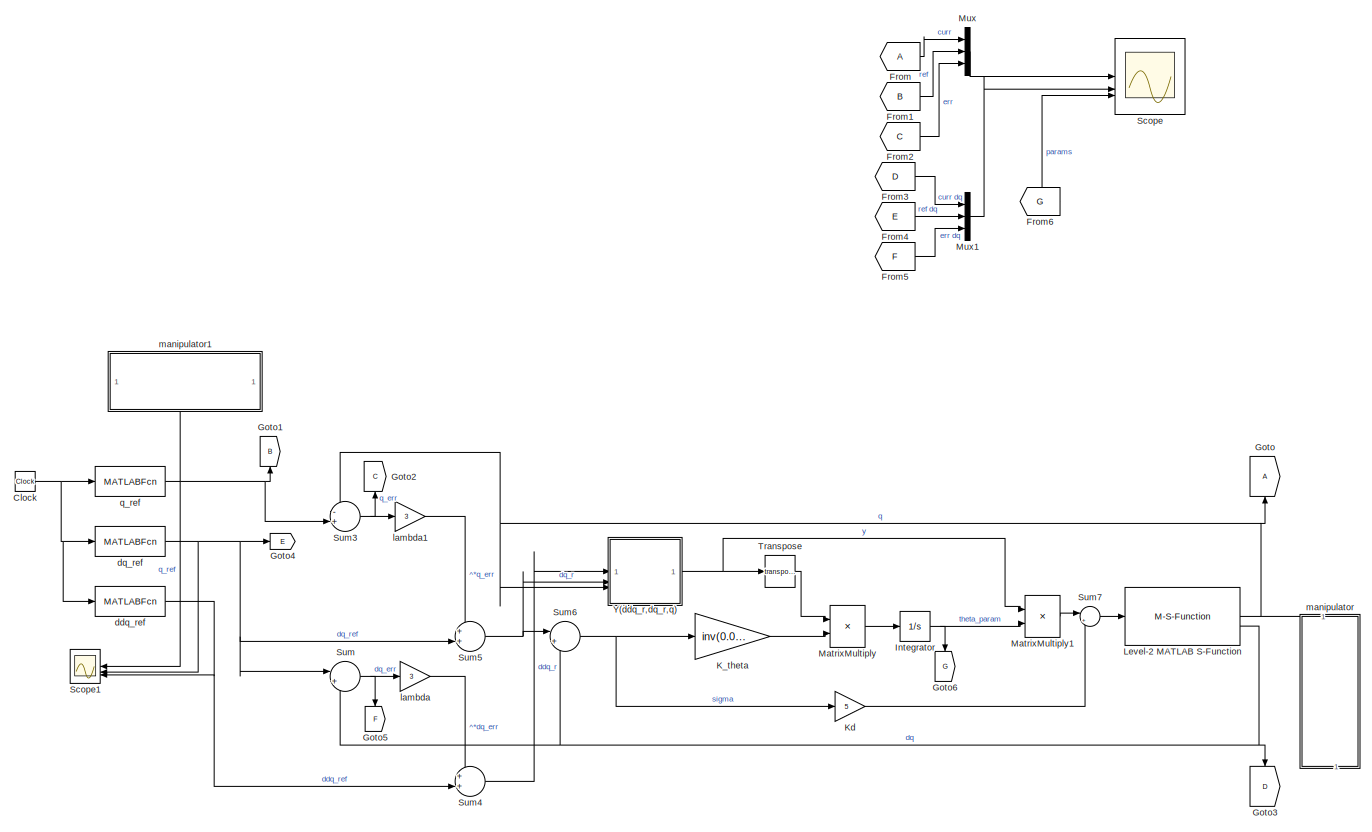
[diagram: root canvas - part 1/1, most of the canvas]
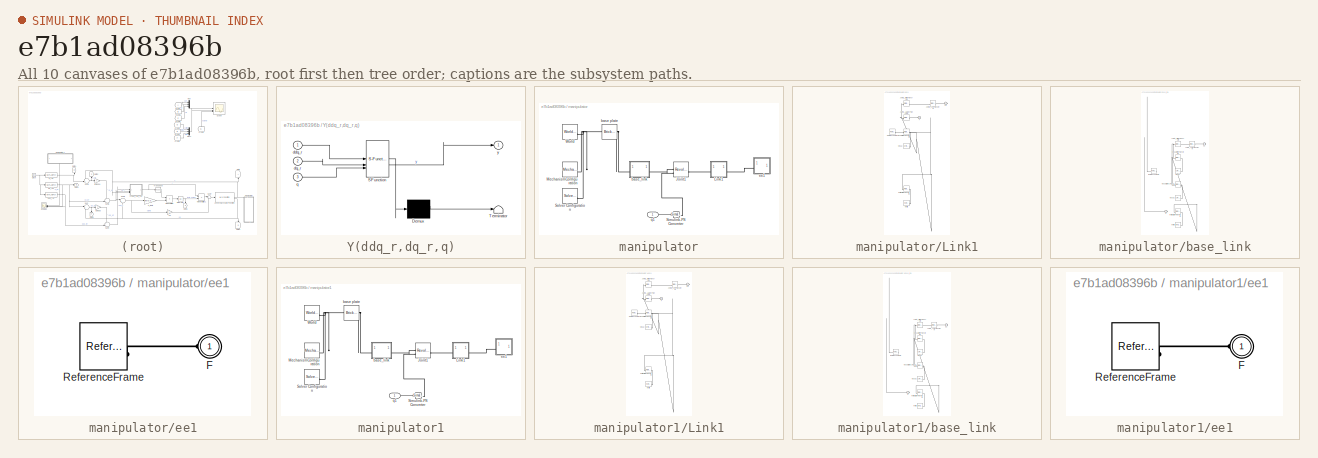
[diagram: thumbnail index - all 10 canvases of the model, root first then tree order]
MODEL slx_e7b1ad08396b
KIND model
CONFIG AbsTol = auto
CONFIG EnableMultiTasking = off
CONFIG FixedStep = 0.001
CONFIG MaxStep = 0.01
CONFIG MinStep = auto
CONFIG RelTol = 0.01
CONFIG SampleTimeConstraint = Unconstrained
CONFIG SolverName = VariableStepAuto
CONFIG StartTime = 0.0
CONFIG StopTime = 15
WORKSPACE source: mxarray member
WORKSPACE Var = 0
BLOCK [Clock] Clock
BLOCK [From] From
BLOCK [From] From1
  GotoTag = B
BLOCK [From] From2
  GotoTag = C
BLOCK [From] From3
  GotoTag = D
BLOCK [From] From4
  GotoTag = E
BLOCK [From] From5
  GotoTag = F
BLOCK [From] From6
  GotoTag = G
BLOCK [Goto] Goto
  NameLocation = right
BLOCK [Goto] Goto1
  GotoTag = B
  NameLocation = right
BLOCK [Goto] Goto2
  GotoTag = C
  NameLocation = right
BLOCK [Goto] Goto3
  GotoTag = D
  NameLocation = left
BLOCK [Goto] Goto4
  GotoTag = E
BLOCK [Goto] Goto5
  GotoTag = F
  NameLocation = left
BLOCK [Goto] Goto6
  GotoTag = G
  NameLocation = left
BLOCK [Integrator] Integrator
  InitialCondition = [1,1,-9.81]
BLOCK [Gain] K_theta
  Gain = inv(0.001)
  Multiplication = Matrix(K*u)
BLOCK [Gain] Kd
  Gain = 5
BLOCK [M-S-Function] Level-2 MATLAB S-Function
  FunctionName = adaptive_control_s_function
  Parameters = arg1,arg2
BLOCK [Product] MatrixMultiply
  Multiplication = Matrix(*)
BLOCK [Product] MatrixMultiply1
  Multiplication = Matrix(*)
BLOCK [Mux] Mux
  DisplayOption = bar
  Inputs = 3
BLOCK [Mux] Mux1
  DisplayOption = bar
  Inputs = 3
BLOCK [Scope] Scope
  Floating = off
  NumInputPorts = 3
  ScopeSpecificationString = Simulink.scopes.TimeScopeBlockCfg('CurrentConfiguration', extmgr.ConfigurationSet(extmgr.Configuration('Core','General UI',true),extmgr.Configuration('Core','Source UI',true),extmgr.Configuration('Sources','WiredSimulink',true),extmgr.Configuration('Visuals','Time Domain',true,'SerializedDisplays',{struct('MinYLimReal','-0.64027','MaxYLimReal','0.52645','YLabelReal','','MinYLimMag','0.00000','MaxY...<+2980ch>
BLOCK [Scope] Scope1
  Floating = off
  NameLocation = top
  NumInputPorts = 3
  ScopeSpecificationString = Simulink.scopes.TimeScopeBlockCfg('CurrentConfiguration', extmgr.ConfigurationSet(extmgr.Configuration('Core','General UI',true),extmgr.Configuration('Core','Source UI',true),extmgr.Configuration('Sources','WiredSimulink',true,'DataLoggingVariableName','ScopeData1'),extmgr.Configuration('Visuals','Time Domain',true,'SerializedDisplays',{struct('MinYLimReal','-2.61799','MaxYLimReal','2.61799','YLab...<+1493ch>
BLOCK [Sum] Sum
  Inputs = |+-
  NameLocation = left
BLOCK [Sum] Sum3
  Inputs = -+|
BLOCK [Sum] Sum4
  Inputs = ++|
BLOCK [Sum] Sum5
  Inputs = ++|
BLOCK [Sum] Sum6
  Inputs = |+-
BLOCK [Sum] Sum7
  Inputs = |++
BLOCK [Math] Transpose
  Operator = transpose
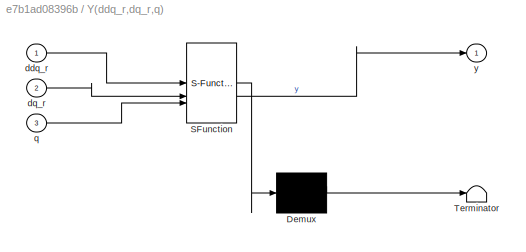
BLOCK [SubSystem] Y(ddq_r,dq_r,q)
  ErrorFcn = Stateflow.Translate.translate
  PermitHierarchicalResolution = ExplicitOnly
  SFBlockType = MATLAB Function
  TreatAsAtomicUnit = on
BLOCK [Demux] Y(ddq_r,dq_r,q)/ Demux 
  Outputs = 1
BLOCK [S-Function] Y(ddq_r,dq_r,q)/ SFunction 
  EnableBusSupport = on
  FunctionName = sf_sfun
  PortCounts = [3 2]
  SFcnIsStateOwnerBlock = off
  SFunctionDeploymentMode = off
  Tag = Stateflow S-Function 1
BLOCK [Terminator] Y(ddq_r,dq_r,q)/ Terminator 
BLOCK [Inport] Y(ddq_r,dq_r,q)/ddq_r
BLOCK [Inport] Y(ddq_r,dq_r,q)/dq_r
  Port = 2
BLOCK [Inport] Y(ddq_r,dq_r,q)/q
  Port = 3
BLOCK [Outport] Y(ddq_r,dq_r,q)/y
BLOCK [MATLABFcn] ddq_ref
  MATLABFcn = ddq_ref(u)
BLOCK [MATLABFcn] dq_ref
  MATLABFcn = dq_ref(u)
BLOCK [Gain] lambda
  Gain = 3
BLOCK [Gain] lambda1
  Gain = 3
BLOCK [SubSystem] manipulator
BLOCK [Reference] manipulator/Joint1  REF=sm_lib/Joints/Revolute Joint
  SourceBlock = sm_lib/Joints/Revolute Joint
  SourceType = Revolute Joint
BLOCK [SubSystem] manipulator/Link1
BLOCK [PMIOPort] manipulator/Link1/F
  Side = Left
BLOCK [PMIOPort] manipulator/Link1/F1
  Port = 2
  Side = Right
BLOCK [Reference] manipulator/Link1/Inertia  REF=sm_lib/Body Elements/Inertia
  SourceBlock = sm_lib/Body Elements/Inertia
  SourceType = Inertia
BLOCK [Reference] manipulator/Link1/InertiaOriginTransform  REF=sm_lib/Frames and
Transforms/Rigid
Transform
  SourceBlock = sm_lib/Frames and\nTransforms/Rigid\nTransform
  SourceType = Rigid\nTransform
BLOCK [Reference] manipulator/Link1/Joint1_AxisInvTransform  REF=sm_lib/Frames and
Transforms/Rigid
Transform
  SourceBlock = sm_lib/Frames and\nTransforms/Rigid\nTransform
  SourceType = Rigid\nTransform
BLOCK [Reference] manipulator/Link1/Joint2_AxisTransform  REF=sm_lib/Frames and
Transforms/Rigid
Transform
  SourceBlock = sm_lib/Frames and\nTransforms/Rigid\nTransform
  SourceType = Rigid\nTransform
BLOCK [Reference] manipulator/Link1/Joint2_OriginTransform  REF=sm_lib/Frames and
Transforms/Rigid
Transform
  SourceBlock = sm_lib/Frames and\nTransforms/Rigid\nTransform
  SourceType = Rigid\nTransform
BLOCK [Reference] manipulator/Link1/ReferenceFrame  REF=sm_lib/Frames and
Transforms/Reference
Frame
  SourceBlock = sm_lib/Frames and\nTransforms/Reference\nFrame
  SourceType = Reference\nFrame
BLOCK [Reference] manipulator/Link1/Visual  REF=sm_lib/Body Elements/Cylindrical Solid
  SourceBlock = sm_lib/Body Elements/Cylindrical Solid
  SourceType = Cylindrical Solid
BLOCK [Reference] manipulator/Link1/VisualOriginTransform  REF=sm_lib/Frames and
Transforms/Rigid
Transform
  SourceBlock = sm_lib/Frames and\nTransforms/Rigid\nTransform
  SourceType = Rigid\nTransform
BLOCK [Reference] manipulator/MechanismConfiguration  REF=sm_lib/Utilities/Mechanism
Configuration
  SourceBlock = sm_lib/Utilities/Mechanism\nConfiguration
  SourceType = Mechanism\nConfiguration
BLOCK [Reference] manipulator/Simulink-PS Converter  REF=nesl_utility/Simulink-PS
Converter
  SourceBlock = nesl_utility/Simulink-PS\nConverter
  SourceType = Simulink-PS\nConverter
BLOCK [Reference] manipulator/Solver Configuration  REF=nesl_utility/Solver
Configuration
  SourceBlock = nesl_utility/Solver\nConfiguration
  SourceType = Solver\nConfiguration
BLOCK [Reference] manipulator/World  REF=sm_lib/Frames and
Transforms/World Frame
  SourceBlock = sm_lib/Frames and\nTransforms/World Frame
  SourceType = World Frame
BLOCK [Reference] manipulator/base plate  REF=sm_lib/Body Elements/Brick Solid
  SourceBlock = sm_lib/Body Elements/Brick Solid
  SourceType = Brick Solid
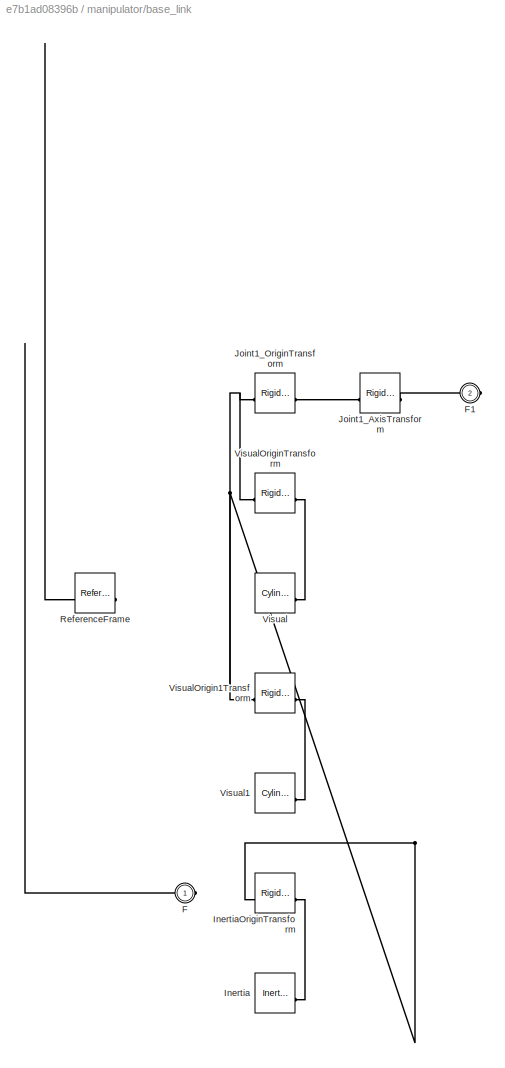
BLOCK [SubSystem] manipulator/base_link
BLOCK [PMIOPort] manipulator/base_link/F
  Side = Left
BLOCK [PMIOPort] manipulator/base_link/F1
  Port = 2
  Side = Right
BLOCK [Reference] manipulator/base_link/Inertia  REF=sm_lib/Body Elements/Inertia
  SourceBlock = sm_lib/Body Elements/Inertia
  SourceType = Inertia
BLOCK [Reference] manipulator/base_link/InertiaOriginTransform  REF=sm_lib/Frames and
Transforms/Rigid
Transform
  SourceBlock = sm_lib/Frames and\nTransforms/Rigid\nTransform
  SourceType = Rigid\nTransform
BLOCK [Reference] manipulator/base_link/Joint1_AxisTransform  REF=sm_lib/Frames and
Transforms/Rigid
Transform
  SourceBlock = sm_lib/Frames and\nTransforms/Rigid\nTransform
  SourceType = Rigid\nTransform
BLOCK [Reference] manipulator/base_link/Joint1_OriginTransform  REF=sm_lib/Frames and
Transforms/Rigid
Transform
  SourceBlock = sm_lib/Frames and\nTransforms/Rigid\nTransform
  SourceType = Rigid\nTransform
BLOCK [Reference] manipulator/base_link/ReferenceFrame  REF=sm_lib/Frames and
Transforms/Reference
Frame
  SourceBlock = sm_lib/Frames and\nTransforms/Reference\nFrame
  SourceType = Reference\nFrame
BLOCK [Reference] manipulator/base_link/Visual  REF=sm_lib/Body Elements/Cylindrical Solid
  SourceBlock = sm_lib/Body Elements/Cylindrical Solid
  SourceType = Cylindrical Solid
BLOCK [Reference] manipulator/base_link/Visual1  REF=sm_lib/Body Elements/Cylindrical Solid
  SourceBlock = sm_lib/Body Elements/Cylindrical Solid
  SourceType = Cylindrical Solid
BLOCK [Reference] manipulator/base_link/VisualOrigin1Transform  REF=sm_lib/Frames and
Transforms/Rigid
Transform
  SourceBlock = sm_lib/Frames and\nTransforms/Rigid\nTransform
  SourceType = Rigid\nTransform
BLOCK [Reference] manipulator/base_link/VisualOriginTransform  REF=sm_lib/Frames and
Transforms/Rigid
Transform
  SourceBlock = sm_lib/Frames and\nTransforms/Rigid\nTransform
  SourceType = Rigid\nTransform
BLOCK [SubSystem] manipulator/ee1
BLOCK [PMIOPort] manipulator/ee1/F
  Side = Left
BLOCK [Reference] manipulator/ee1/ReferenceFrame  REF=sm_lib/Frames and
Transforms/Reference
Frame
  SourceBlock = sm_lib/Frames and\nTransforms/Reference\nFrame
  SourceType = Reference\nFrame
BLOCK [Inport] manipulator/q1
BLOCK [SubSystem] manipulator1
  NameLocation = top
  PortSchema = {"entries":[{"content":{"sides":[{"content":{},"type":"ConnectorPlacement.EquallySpacedRectSide","uuid":"5723c637-0523-4204-8fce-97b9f380e48b"},{"content":{"side":"RIGHT"},"type":"ConnectorPlacement.EquallySpacedRectSide","uuid":"3a448cf4-98b4-43ec-a2cf-4edeb1b51242"},{"content":{"side":"TOP"},"type":"ConnectorPlacement.EquallySpacedRectSide","uuid":"b2222458-9218-4d12-87f2-c6e8532121c4"},{"conten...<+325ch>
BLOCK [Reference] manipulator1/Joint1  REF=sm_lib/Joints/Revolute Joint
  SourceBlock = sm_lib/Joints/Revolute Joint
  SourceType = Revolute Joint
BLOCK [SubSystem] manipulator1/Link1
BLOCK [PMIOPort] manipulator1/Link1/F
  Side = Left
BLOCK [PMIOPort] manipulator1/Link1/F1
  Port = 2
  Side = Right
BLOCK [Reference] manipulator1/Link1/Inertia  REF=sm_lib/Body Elements/Inertia
  SourceBlock = sm_lib/Body Elements/Inertia
  SourceType = Inertia
BLOCK [Reference] manipulator1/Link1/InertiaOriginTransform  REF=sm_lib/Frames and
Transforms/Rigid
Transform
  SourceBlock = sm_lib/Frames and\nTransforms/Rigid\nTransform
  SourceType = Rigid\nTransform
BLOCK [Reference] manipulator1/Link1/Joint1_AxisInvTransform  REF=sm_lib/Frames and
Transforms/Rigid
Transform
  SourceBlock = sm_lib/Frames and\nTransforms/Rigid\nTransform
  SourceType = Rigid\nTransform
BLOCK [Reference] manipulator1/Link1/Joint2_AxisTransform  REF=sm_lib/Frames and
Transforms/Rigid
Transform
  SourceBlock = sm_lib/Frames and\nTransforms/Rigid\nTransform
  SourceType = Rigid\nTransform
BLOCK [Reference] manipulator1/Link1/Joint2_OriginTransform  REF=sm_lib/Frames and
Transforms/Rigid
Transform
  SourceBlock = sm_lib/Frames and\nTransforms/Rigid\nTransform
  SourceType = Rigid\nTransform
BLOCK [Reference] manipulator1/Link1/ReferenceFrame  REF=sm_lib/Frames and
Transforms/Reference
Frame
  SourceBlock = sm_lib/Frames and\nTransforms/Reference\nFrame
  SourceType = Reference\nFrame
BLOCK [Reference] manipulator1/Link1/Visual  REF=sm_lib/Body Elements/Cylindrical Solid
  SourceBlock = sm_lib/Body Elements/Cylindrical Solid
  SourceType = Cylindrical Solid
BLOCK [Reference] manipulator1/Link1/VisualOriginTransform  REF=sm_lib/Frames and
Transforms/Rigid
Transform
  SourceBlock = sm_lib/Frames and\nTransforms/Rigid\nTransform
  SourceType = Rigid\nTransform
BLOCK [Reference] manipulator1/MechanismConfiguration  REF=sm_lib/Utilities/Mechanism
Configuration
  SourceBlock = sm_lib/Utilities/Mechanism\nConfiguration
  SourceType = Mechanism\nConfiguration
BLOCK [Reference] manipulator1/Simulink-PS Converter  REF=nesl_utility/Simulink-PS
Converter
  SourceBlock = nesl_utility/Simulink-PS\nConverter
  SourceType = Simulink-PS\nConverter
BLOCK [Reference] manipulator1/Solver Configuration  REF=nesl_utility/Solver
Configuration
  SourceBlock = nesl_utility/Solver\nConfiguration
  SourceType = Solver\nConfiguration
BLOCK [Reference] manipulator1/World  REF=sm_lib/Frames and
Transforms/World Frame
  SourceBlock = sm_lib/Frames and\nTransforms/World Frame
  SourceType = World Frame
BLOCK [Reference] manipulator1/base plate  REF=sm_lib/Body Elements/Brick Solid
  SourceBlock = sm_lib/Body Elements/Brick Solid
  SourceType = Brick Solid
BLOCK [SubSystem] manipulator1/base_link
BLOCK [PMIOPort] manipulator1/base_link/F
  Side = Left
BLOCK [PMIOPort] manipulator1/base_link/F1
  Port = 2
  Side = Right
BLOCK [Reference] manipulator1/base_link/Inertia  REF=sm_lib/Body Elements/Inertia
  SourceBlock = sm_lib/Body Elements/Inertia
  SourceType = Inertia
BLOCK [Reference] manipulator1/base_link/InertiaOriginTransform  REF=sm_lib/Frames and
Transforms/Rigid
Transform
  SourceBlock = sm_lib/Frames and\nTransforms/Rigid\nTransform
  SourceType = Rigid\nTransform
BLOCK [Reference] manipulator1/base_link/Joint1_AxisTransform  REF=sm_lib/Frames and
Transforms/Rigid
Transform
  SourceBlock = sm_lib/Frames and\nTransforms/Rigid\nTransform
  SourceType = Rigid\nTransform
BLOCK [Reference] manipulator1/base_link/Joint1_OriginTransform  REF=sm_lib/Frames and
Transforms/Rigid
Transform
  SourceBlock = sm_lib/Frames and\nTransforms/Rigid\nTransform
  SourceType = Rigid\nTransform
BLOCK [Reference] manipulator1/base_link/ReferenceFrame  REF=sm_lib/Frames and
Transforms/Reference
Frame
  SourceBlock = sm_lib/Frames and\nTransforms/Reference\nFrame
  SourceType = Reference\nFrame
BLOCK [Reference] manipulator1/base_link/Visual  REF=sm_lib/Body Elements/Cylindrical Solid
  SourceBlock = sm_lib/Body Elements/Cylindrical Solid
  SourceType = Cylindrical Solid
BLOCK [Reference] manipulator1/base_link/Visual1  REF=sm_lib/Body Elements/Cylindrical Solid
  SourceBlock = sm_lib/Body Elements/Cylindrical Solid
  SourceType = Cylindrical Solid
BLOCK [Reference] manipulator1/base_link/VisualOrigin1Transform  REF=sm_lib/Frames and
Transforms/Rigid
Transform
  SourceBlock = sm_lib/Frames and\nTransforms/Rigid\nTransform
  SourceType = Rigid\nTransform
BLOCK [Reference] manipulator1/base_link/VisualOriginTransform  REF=sm_lib/Frames and
Transforms/Rigid
Transform
  SourceBlock = sm_lib/Frames and\nTransforms/Rigid\nTransform
  SourceType = Rigid\nTransform
BLOCK [SubSystem] manipulator1/ee1
BLOCK [PMIOPort] manipulator1/ee1/F
  Side = Left
BLOCK [Reference] manipulator1/ee1/ReferenceFrame  REF=sm_lib/Frames and
Transforms/Reference
Frame
  SourceBlock = sm_lib/Frames and\nTransforms/Reference\nFrame
  SourceType = Reference\nFrame
BLOCK [Inport] manipulator1/q1
BLOCK [MATLABFcn] q_ref
  MATLABFcn = q_ref(u)
NET Clock:1 -> ddq_ref:1, dq_ref:1, q_ref:1
LINE From1:1 -> Mux:2
LINE From2:1 -> Mux:3
LINE From3:1 -> Mux1:1
LINE From4:1 -> Mux1:2
LINE From5:1 -> Mux1:3
LINE From6:1 -> Scope:3
LINE From:1 -> Mux:1
NET Integrator:1 -> Goto6:1, MatrixMultiply1:2
LINE K_theta:1 -> MatrixMultiply:2
LINE Kd:1 -> Sum7:2
NET Level-2 MATLAB S-Function:1 -> Goto:1, Sum3:1, Y(ddq_r,dq_r,q):3, manipulator:1
NET Level-2 MATLAB S-Function:2 -> Goto3:1, Sum6:2, Sum:2
LINE MatrixMultiply1:1 -> Sum7:1
LINE MatrixMultiply:1 -> Integrator:1
LINE Mux1:1 -> Scope:2
LINE Mux:1 -> Scope:1
NET Sum3:1 -> Goto2:1, lambda1:1
LINE Sum4:1 -> Y(ddq_r,dq_r,q):1
NET Sum5:1 -> Sum6:1, Y(ddq_r,dq_r,q):2
NET Sum6:1 -> K_theta:1, Kd:1
LINE Sum7:1 -> Level-2 MATLAB S-Function:1
NET Sum:1 -> Goto5:1, lambda:1
LINE Transpose:1 -> MatrixMultiply:1
NET Y(ddq_r,dq_r,q):1 -> MatrixMultiply1:1, Transpose:1
NET ddq_ref:1 -> Scope1:3, Sum4:2
NET dq_ref:1 -> Goto4:1, Scope1:2, Sum5:2, Sum:1
LINE lambda1:1 -> Sum5:1
LINE lambda:1 -> Sum4:1
LINE manipulator/q1:1 -> manipulator/Simulink-PS Converter:1
LINE manipulator1/q1:1 -> manipulator1/Simulink-PS Converter:1
NET q_ref:1 -> Goto1:1, Scope1:1, Sum3:2, manipulator1:1
PLINE manipulator/Joint1:LConn1 -- manipulator/base_link:RConn1
PLINE manipulator/Joint1:LConn2 -- manipulator/Simulink-PS Converter:RConn1
PLINE manipulator/Joint1:RConn1 -- manipulator/Link1:LConn1
PLINE manipulator/Link1/F1:RConn1 -- manipulator/Link1/Joint2_AxisTransform:RConn1
PLINE manipulator/Link1/F:RConn1 -- manipulator/Link1/Joint1_AxisInvTransform:RConn1
PLINE manipulator/Link1/Inertia:RConn1 -- manipulator/Link1/InertiaOriginTransform:RConn1
PNET net1: manipulator/Link1/InertiaOriginTransform:LConn1 -- manipulator/Link1/Joint1_AxisInvTransform:LConn1 -- manipulator/Link1/Joint2_OriginTransform:LConn1 -- manipulator/Link1/ReferenceFrame:RConn1 -- manipulator/Link1/VisualOriginTransform:LConn1
PLINE manipulator/Link1/Joint2_AxisTransform:LConn1 -- manipulator/Link1/Joint2_OriginTransform:RConn1
PLINE manipulator/Link1/Visual:RConn1 -- manipulator/Link1/VisualOriginTransform:RConn1
PLINE manipulator/Link1:RConn1 -- manipulator/ee1:LConn1
PNET net2: manipulator/MechanismConfiguration:RConn1 -- manipulator/Solver Configuration:RConn1 -- manipulator/World:RConn1 -- manipulator/base plate:RConn1 -- manipulator/base_link:LConn1
PLINE manipulator/base_link/F1:RConn1 -- manipulator/base_link/Joint1_AxisTransform:RConn1
PNET net3: manipulator/base_link/F:RConn1 -- manipulator/base_link/InertiaOriginTransform:LConn1 -- manipulator/base_link/Joint1_OriginTransform:LConn1 -- manipulator/base_link/ReferenceFrame:RConn1 -- manipulator/base_link/VisualOrigin1Transform:LConn1 -- manipulator/base_link/VisualOriginTransform:LConn1
PLINE manipulator/base_link/Inertia:RConn1 -- manipulator/base_link/InertiaOriginTransform:RConn1
PLINE manipulator/base_link/Joint1_AxisTransform:LConn1 -- manipulator/base_link/Joint1_OriginTransform:RConn1
PLINE manipulator/base_link/Visual1:RConn1 -- manipulator/base_link/VisualOrigin1Transform:RConn1
PLINE manipulator/base_link/Visual:RConn1 -- manipulator/base_link/VisualOriginTransform:RConn1
PLINE manipulator/ee1/F:RConn1 -- manipulator/ee1/ReferenceFrame:RConn1
PLINE manipulator1/Joint1:LConn1 -- manipulator1/base_link:RConn1
PLINE manipulator1/Joint1:LConn2 -- manipulator1/Simulink-PS Converter:RConn1
PLINE manipulator1/Joint1:RConn1 -- manipulator1/Link1:LConn1
PLINE manipulator1/Link1/F1:RConn1 -- manipulator1/Link1/Joint2_AxisTransform:RConn1
PLINE manipulator1/Link1/F:RConn1 -- manipulator1/Link1/Joint1_AxisInvTransform:RConn1
PLINE manipulator1/Link1/Inertia:RConn1 -- manipulator1/Link1/InertiaOriginTransform:RConn1
PNET net4: manipulator1/Link1/InertiaOriginTransform:LConn1 -- manipulator1/Link1/Joint1_AxisInvTransform:LConn1 -- manipulator1/Link1/Joint2_OriginTransform:LConn1 -- manipulator1/Link1/ReferenceFrame:RConn1 -- manipulator1/Link1/VisualOriginTransform:LConn1
PLINE manipulator1/Link1/Joint2_AxisTransform:LConn1 -- manipulator1/Link1/Joint2_OriginTransform:RConn1
PLINE manipulator1/Link1/Visual:RConn1 -- manipulator1/Link1/VisualOriginTransform:RConn1
PLINE manipulator1/Link1:RConn1 -- manipulator1/ee1:LConn1
PNET net5: manipulator1/MechanismConfiguration:RConn1 -- manipulator1/Solver Configuration:RConn1 -- manipulator1/World:RConn1 -- manipulator1/base plate:RConn1 -- manipulator1/base_link:LConn1
PLINE manipulator1/base_link/F1:RConn1 -- manipulator1/base_link/Joint1_AxisTransform:RConn1
PNET net6: manipulator1/base_link/F:RConn1 -- manipulator1/base_link/InertiaOriginTransform:LConn1 -- manipulator1/base_link/Joint1_OriginTransform:LConn1 -- manipulator1/base_link/ReferenceFrame:RConn1 -- manipulator1/base_link/VisualOrigin1Transform:LConn1 -- manipulator1/base_link/VisualOriginTransform:LConn1
PLINE manipulator1/base_link/Inertia:RConn1 -- manipulator1/base_link/InertiaOriginTransform:RConn1
PLINE manipulator1/base_link/Joint1_AxisTransform:LConn1 -- manipulator1/base_link/Joint1_OriginTransform:RConn1
PLINE manipulator1/base_link/Visual1:RConn1 -- manipulator1/base_link/VisualOrigin1Transform:RConn1
PLINE manipulator1/base_link/Visual:RConn1 -- manipulator1/base_link/VisualOriginTransform:RConn1
PLINE manipulator1/ee1/F:RConn1 -- manipulator1/ee1/ReferenceFrame:RConn1
note: NET lines group one-source signal fan-out (src -> all destinations, sorted); 1:1 wires keep LINE; PNET lines group multi-terminal physical nets as a canonical sorted terminal list (undirected conserving connections); 2-terminal nets keep the pairwise PLINE form
CHART Y(ddq_r,dq_r,q) states=1 transitions=1
  STATE_LABEL 'eML_blk_kernel()'
  STATE_LABEL 'SCRIPT:\nfunction y = fcn(ddq_r,dq_r,q)\n\ny = [ddq_r,dq_r,sin(q)];\n'
CHART  states=0 transitions=0
